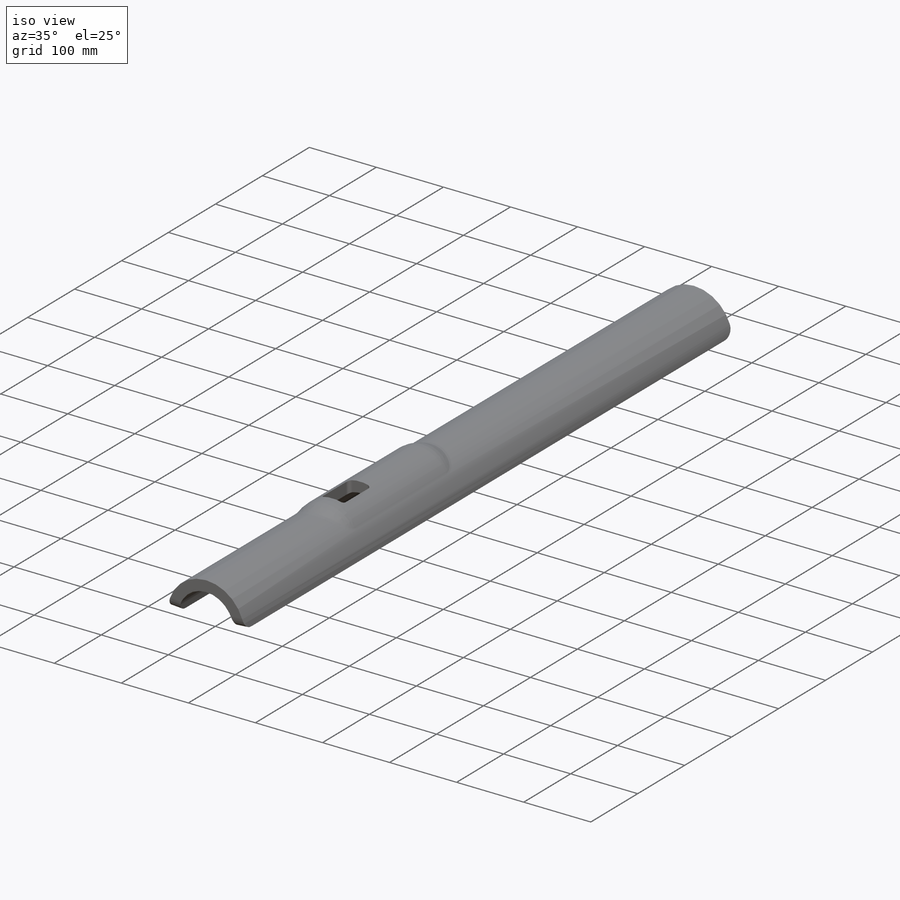
[diagram: iso view]
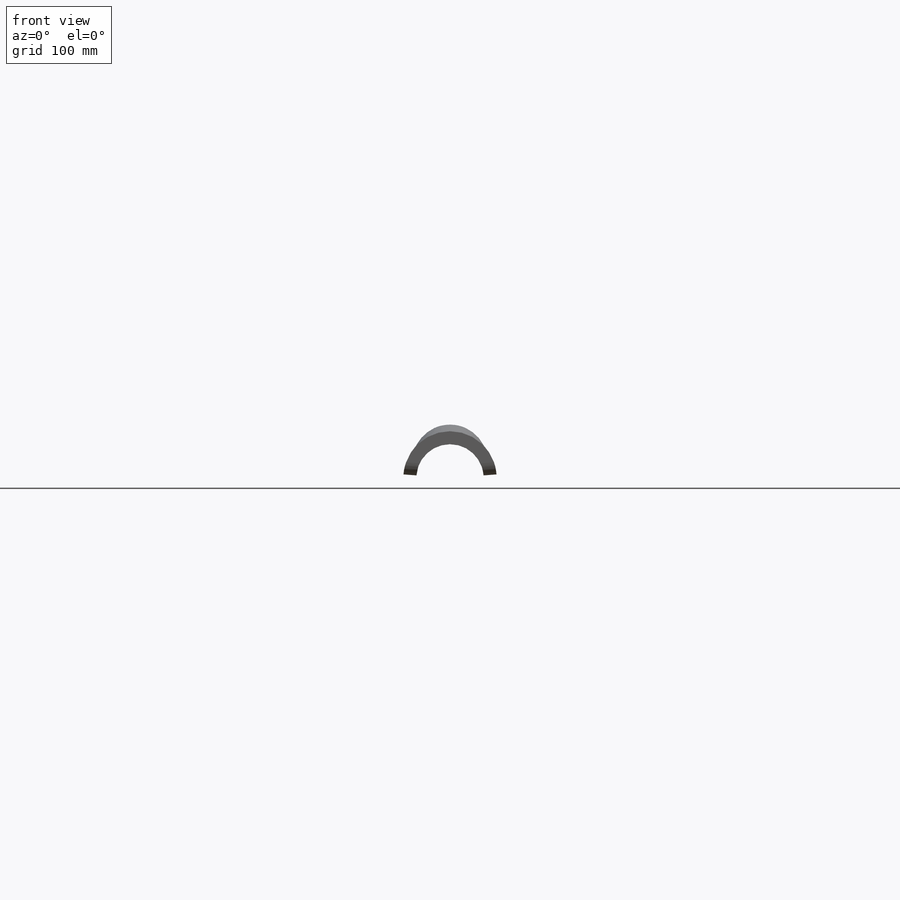
[diagram: front view]
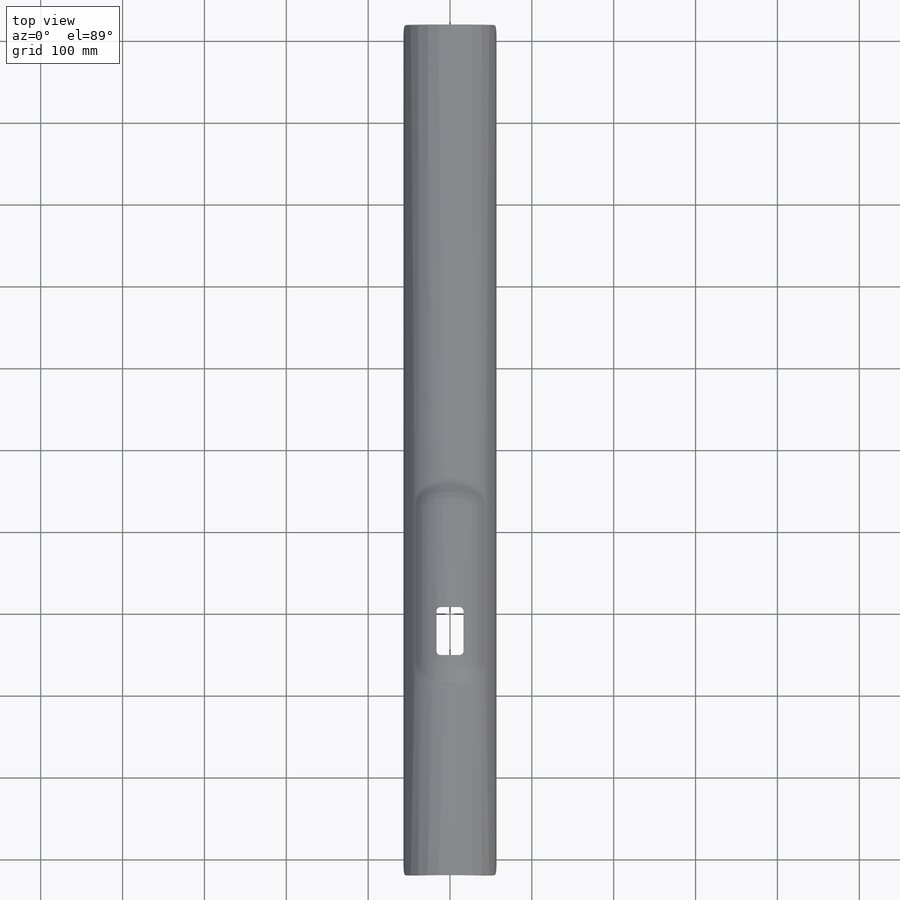
[diagram: top view]
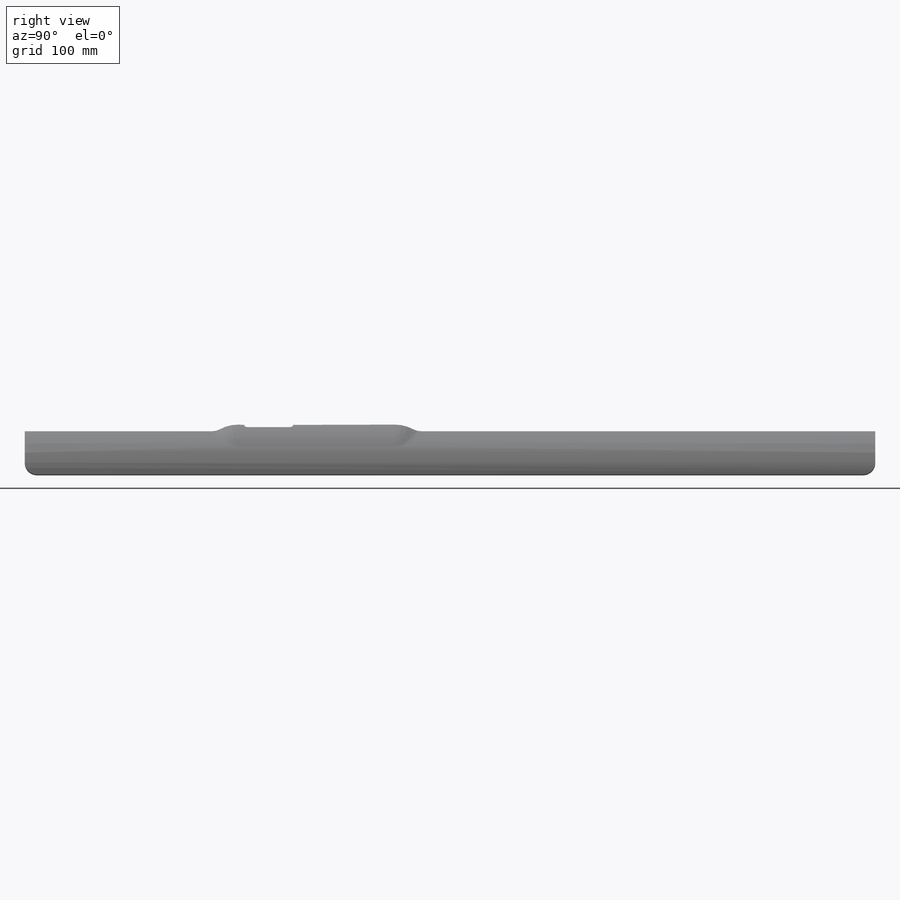
[diagram: right view]
SOLIDWORKS PART (.sldprt)
format: sldprt  version: not decoded by parser v0  size: 366,080 bytes
history: native  units: mm
features: sketch x9, revolve x4, extrude x3, fillet x3, boolean_combine x3, cut_extrude x2, material x1, plane x1 (+11 scaffold rows collapsed)
feature tree (37):
  scaffold x11  (default folders/planes/origin — collapsed)
  material  "A-Glass Fiber"
  sketch  "Sketch1"  dims[D1=82.12mm D2=113.87mm D3=3.0mm]
  extrude  "Boss-Extrude1"  Depth=1039mm
  fillet  "Fillet1"  Radius=15mm
  plane  "Plane4"  Offset=67mm
  sketch  "Sketch9"  dims[D1=92.0mm D2=19.0mm]
  extrude  "Boss-Extrude3"  Depth=192mm
  sketch  "Sketch10"
  revolve  "Revolve4"  Angle=90deg
  sketch  "Sketch12"
  revolve  "Revolve5"  Angle=90deg
  boolean_combine  "Combine4"
  sketch  "Sketch2"  dims[D1=221.5mm D2=33.0mm D3=59.0mm]
  cut_extrude  "Cut-Extrude2"  [1 undecoded]
  fillet  "Fillet2"  Radius=5mm
  sketch  "Sketch13"
  cut_extrude  "Cut-Extrude3"  [1 undecoded]
  sketch  "Sketch14"  dims[D1=61.0mm]
  extrude  "Boss-Extrude4"  Depth=192mm
  sketch  "Sketch15"
  revolve  "Revolve6"  Angle=360deg
  sketch  "Sketch16"
  revolve  "Revolve7"  Angle=360deg
  boolean_combine  "Combine5"
  boolean_combine  "Combine6"
  fillet  "Fillet4"  Radius=20mm
decode coverage: 14 of 24 modeling features carry decoded parameters
note: 2 parameter values undecoded
note: suppression state not decoded; provenance and decode notes live in map.json
